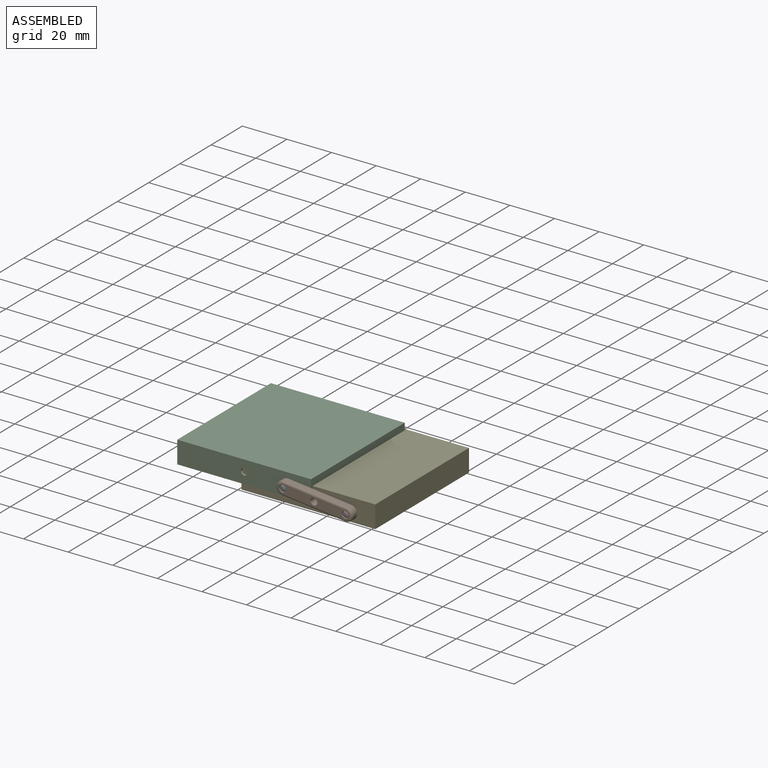
[diagram: assembled view]
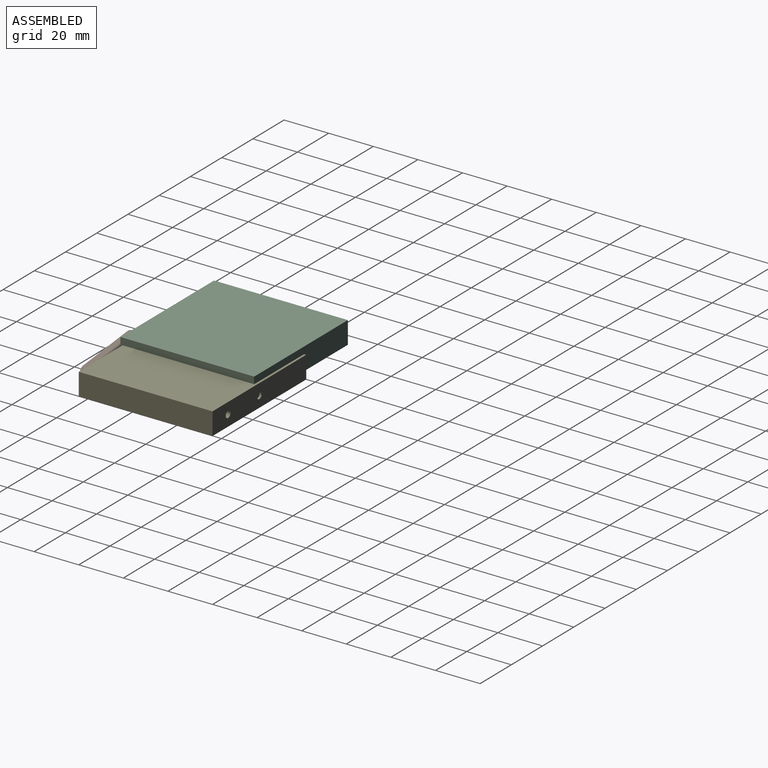
[diagram: assembled view, second angle]
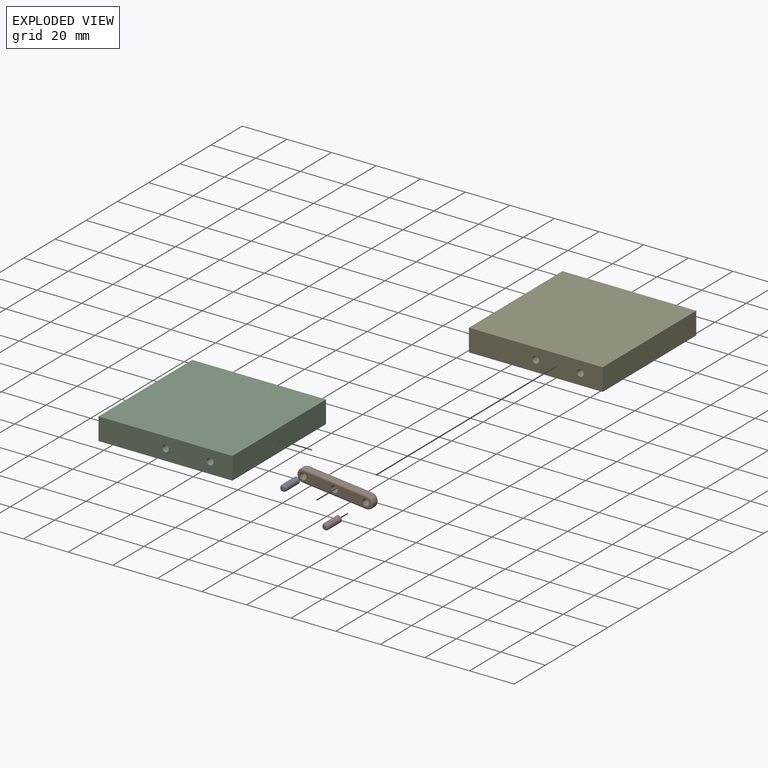
[diagram: exploded view]
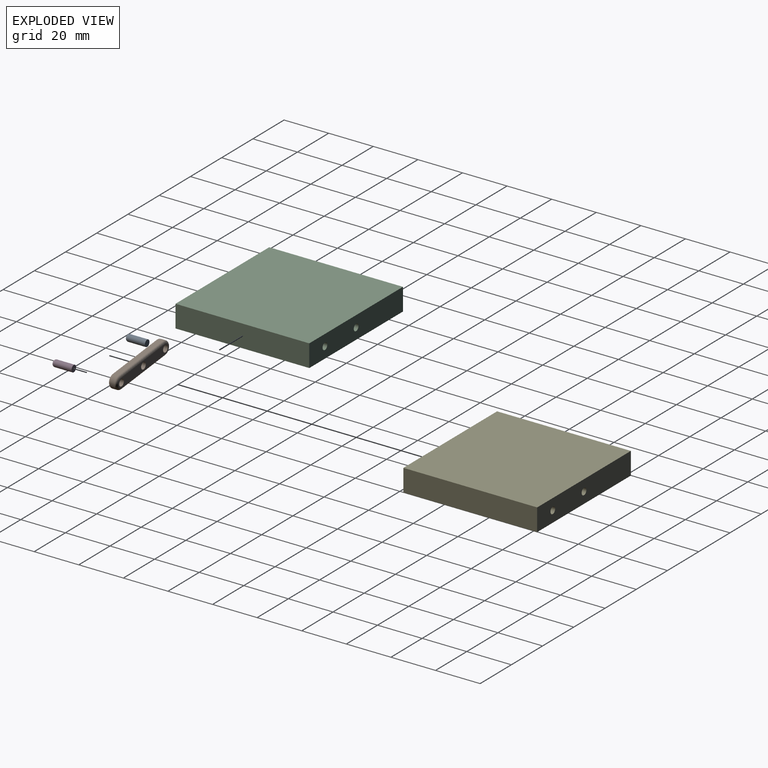
[diagram: exploded view, second angle]
ASSEMBLY  parts=5 mates=4
PART A: 4 faces, bbox 3x9x3 mm
  f0: cylinder r=1.47mm len=8mm, axis (0,-1,0), area 74.1mm2, adj f1,f3
  f1: plane 2.95x2.95mm, normal (0,1,0), area 6.8mm2, adj f0
  f2: plane 0.95x0.95mm, normal (0,-1,0), area 0.7mm2, adj f3
  f3: torus R=0.47mm, axis (0,-1,0), area 11mm2, adj f0,f2
PART B: 17 faces, bbox 26.5x4x26.5 mm
  f0: plane 20x20mm, normal (0.71,0,0.71), area 56.6mm2, adj f1,f5,f11,f13
  f1: cylinder r=3mm len=5.12mm, axis (0,1,0), area 18.8mm2, adj f0,f2,f9,f14
  f2: plane 20x20mm, normal (-0.71,0,-0.71), area 56.6mm2, adj f1,f5,f10,f16
  f3: cylinder r=1.5mm len=4mm, axis (0,1,0), area 37.7mm2, adj f7,f8
  f4: cylinder r=1.5mm len=4mm, axis (0,1,0), area 37.7mm2, adj f7,f8
  f5: cylinder r=3mm len=5.12mm, axis (0,1,0), area 18.8mm2, adj f0,f2,f12,f15
  f6: cylinder r=1.5mm len=4mm, axis (0,1,0), area 37.7mm2, adj f7,f8
  f7: plane 24x24mm, normal (0,-1,0), area 104.5mm2, adj f3,f4,f6,f13,f14,f15,f16
  f8: plane 24x24mm, normal (0,1,0), area 104.5mm2, adj f3,f4,f6,f9,f10,f11,f12
  f9: torus R=2mm, axis (0,-1,0), area 13mm2, adj f1,f8,f10,f11
  f10: cylinder r=1mm len=20.71mm, axis (0.71,0,-0.71), area 44.4mm2, adj f2,f8,f9,f12
  f11: cylinder r=1mm len=20.71mm, axis (-0.71,0,0.71), area 44.4mm2, adj f0,f8,f9,f12
  f12: torus R=2mm, axis (0,-1,0), area 13mm2, adj f5,f8,f10,f11
  f13: cylinder r=1mm len=20.71mm, axis (0.71,0,-0.71), area 44.4mm2, adj f0,f7,f14,f15
  f14: torus R=2mm, axis (0,-1,0), area 13mm2, adj f1,f7,f13,f16
  f15: torus R=2mm, axis (0,-1,0), area 13mm2, adj f5,f7,f13,f16
  f16: cylinder r=1mm len=20.71mm, axis (-0.71,0,0.71), area 44.4mm2, adj f2,f7,f14,f15
PART C: 15 faces, bbox 60x60x10 mm
  f0: plane 60x10mm, normal (0,1,0), area 585.9mm2, adj f1,f7,f8,f9,f13,f14
  f1: plane 60x10mm, normal (-1,0,0), area 600mm2, adj f0,f2,f8,f9
  f2: plane 60x10mm, normal (0,-1,0), area 585.9mm2, adj f1,f7,f8,f9,f11,f12
  f3: plane 50x7mm, normal (1,0,0), area 350mm2, adj f4,f6,f8,f10
  f4: plane 50x7mm, normal (0,-1,0), area 335.9mm2, adj f3,f5,f8,f10,f13,f14
  f5: plane 50x7mm, normal (-1,0,0), area 350mm2, adj f4,f6,f8,f10
  f6: plane 50x7mm, normal (0,1,0), area 335.9mm2, adj f3,f5,f8,f10,f11,f12
  f7: plane 60x10mm, normal (1,0,0), area 600mm2, adj f0,f2,f8,f9
  f8: plane 60x60mm, normal (0,0,1), area 1100mm2, adj f0,f1,f2,f3,f4,f5,f6,f7
  f9: plane 60x60mm, normal (0,0,-1), area 3600mm2, adj f0,f1,f2,f7
  f10: plane 50x50mm, normal (0,0,1), area 2500mm2, adj f3,f4,f5,f6
  f11: cylinder r=1.5mm len=5mm, axis (0,-1,0), area 47.1mm2, adj f2,f6
  f12: cylinder r=1.5mm len=5mm, axis (0,-1,0), area 47.1mm2, adj f2,f6
  f13: cylinder r=1.5mm len=5mm, axis (0,-1,0), area 47.1mm2, adj f0,f4
  f14: cylinder r=1.5mm len=5mm, axis (0,-1,0), area 47.1mm2, adj f0,f4
PART D: same geometry as A
PART E: 15 faces, bbox 60x60x10 mm
  f0: plane 60x10mm, normal (0,1,0), area 585.9mm2, adj f1,f7,f8,f9,f13,f14
  f1: plane 60x10mm, normal (-1,0,0), area 600mm2, adj f0,f2,f8,f9
  f2: plane 60x10mm, normal (0,-1,0), area 585.9mm2, adj f1,f7,f8,f9,f11,f12
  f3: plane 50x7mm, normal (1,0,0), area 350mm2, adj f4,f6,f8,f10
  f4: plane 50x7mm, normal (0,-1,0), area 335.9mm2, adj f3,f5,f8,f10,f13,f14
  f5: plane 50x7mm, normal (-1,0,0), area 350mm2, adj f4,f6,f8,f10
  f6: plane 50x7mm, normal (0,1,0), area 335.9mm2, adj f3,f5,f8,f10,f11,f12
  f7: plane 60x10mm, normal (1,0,0), area 600mm2, adj f0,f2,f8,f9
  f8: plane 60x60mm, normal (0,0,1), area 1100mm2, adj f0,f1,f2,f3,f4,f5,f6,f7
  f9: plane 60x60mm, normal (0,0,-1), area 3600mm2, adj f0,f1,f2,f7
  f10: plane 50x50mm, normal (0,0,1), area 2500mm2, adj f3,f4,f5,f6
  f11: cylinder r=1.5mm len=5mm, axis (0,-1,0), area 47.1mm2, adj f2,f6
  f12: cylinder r=1.5mm len=5mm, axis (0,-1,0), area 47.1mm2, adj f2,f6
  f13: cylinder r=1.5mm len=5mm, axis (0,-1,0), area 47.1mm2, adj f0,f4
  f14: cylinder r=1.5mm len=5mm, axis (0,-1,0), area 47.1mm2, adj f0,f4
PLACE A t=(-73.55,-19.52,-21.63)mm
PLACE B rot(axis=(0,-1,0),38.8deg) t=(-62.64,-19.52,-2.66)mm
PLACE C rot(axis=(1,0,0),180deg) t=(-113.55,-6.28,8.37)mm
PLACE D t=(-45.44,-19.52,-24.71)mm
PLACE E rot(axis=(0,1,0),180deg) t=(-88.47,-18.52,25.29)mm
MATE revolute B.f1 <-> A.f0  axis (0,1,0) through (-95.07,-42.9,3.37)mm
MATE revolute E.f12 <-> D.f0  axis (0,-1,0) through (-66.96,-41.9,0.29)mm
MATE revolute B.f4 <-> D.f0  axis (0,1,0) through (-66.96,-42.9,0.29)mm
MATE revolute C.f12 <-> A.f0  axis (0,-1,0) through (-95.07,-42.9,3.37)mm
